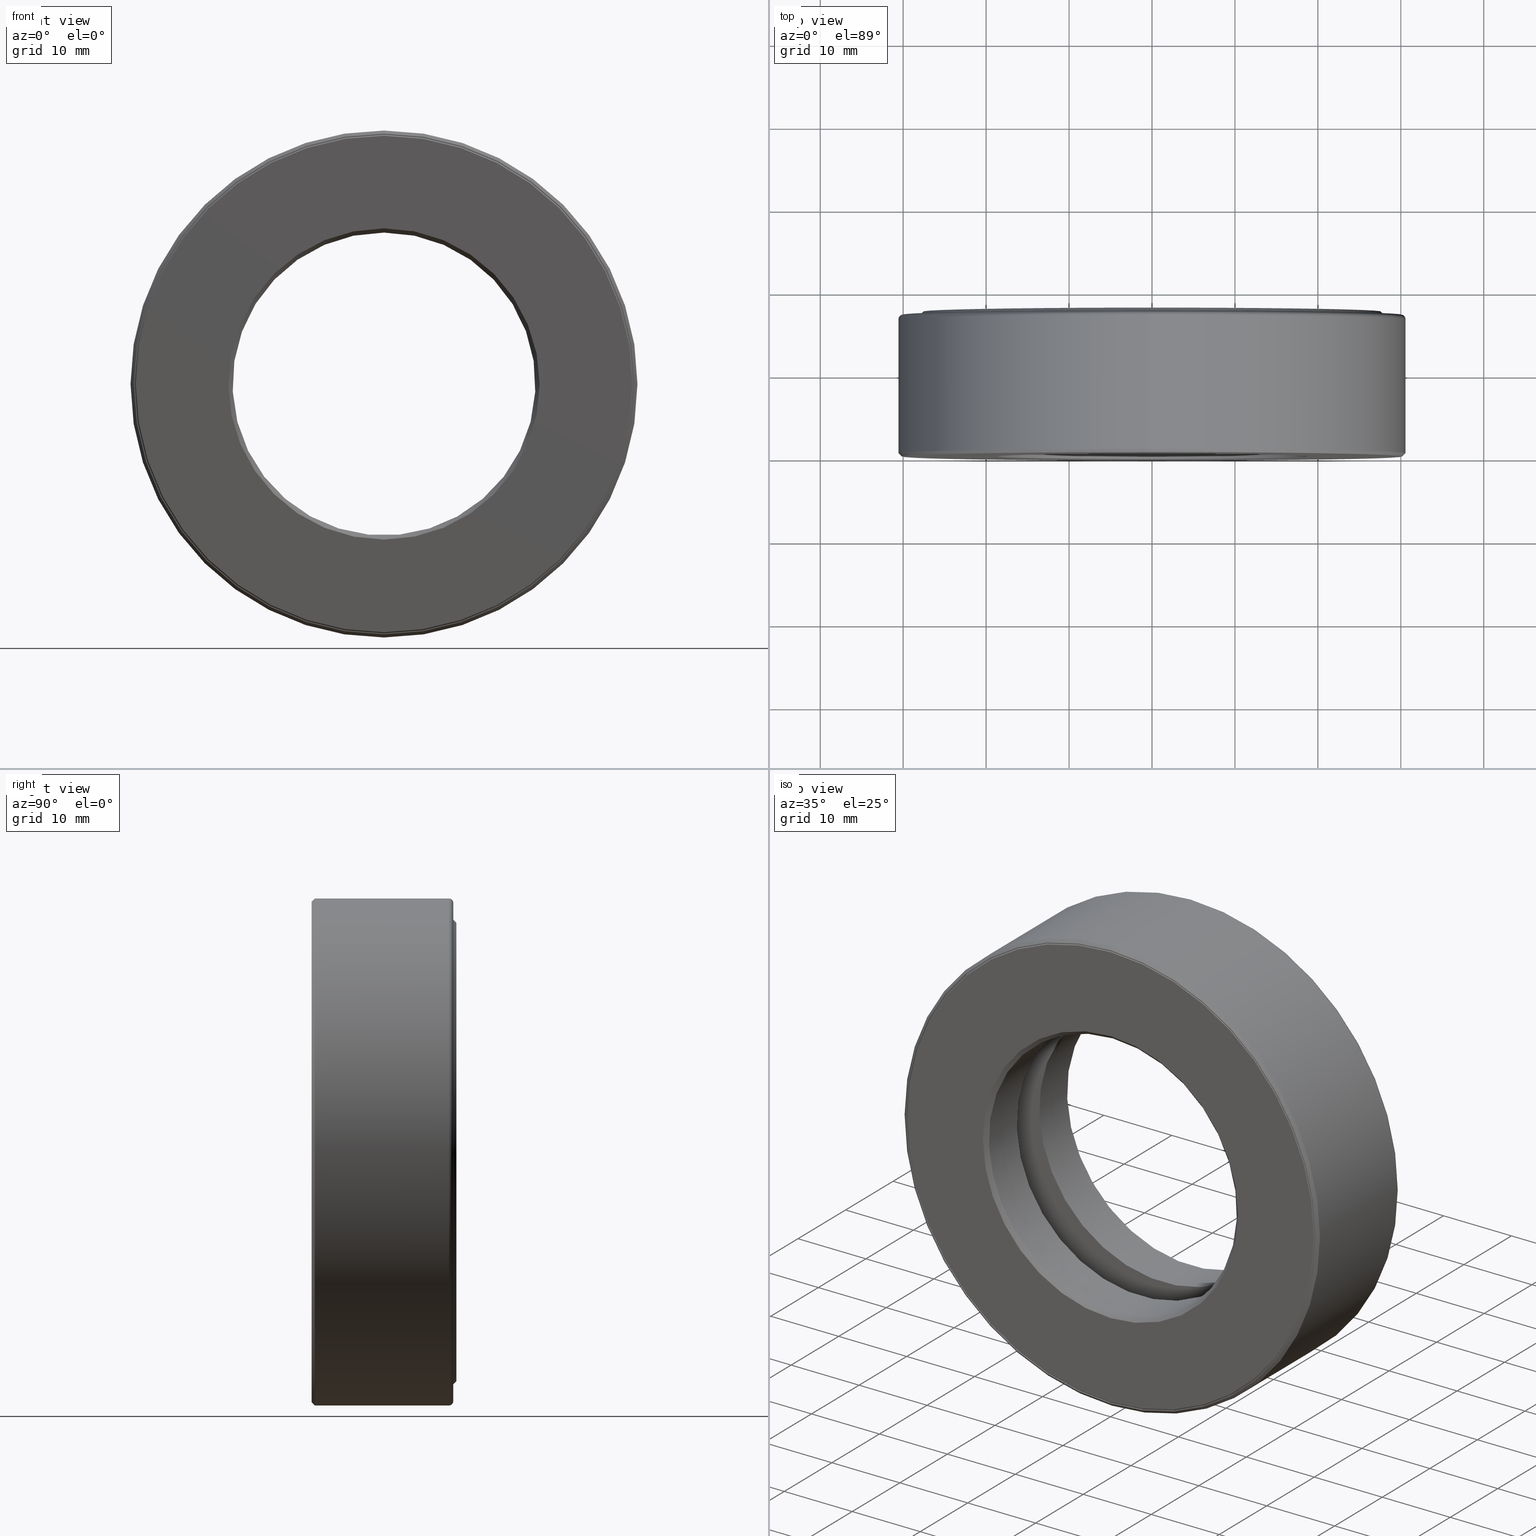
[diagram: canonical four-view strip — front | top / right | iso, engineering-drawing reading convention]
A machine part, canonical four-view strip (front | top / right | iso — engineering-drawing reading convention). The complete STEP part file that produces these views, byte-faithful:
ISO-10303-21;
HEADER;
FILE_DESCRIPTION (( 'STEP AP203' ),
    '1' );
FILE_NAME ('T-100-18.step',
    '2016-06-29T18:27:21',
    ( '' ),
    ( '' ),
    'SwSTEP 2.0',
    'SolidWorks 2016',
    '' );
FILE_SCHEMA (( 'CONFIG_CONTROL_DESIGN' ));
ENDSEC;

DATA;
#1 = ORIENTED_EDGE ( 'NONE', *, *, #105, .T. ) ;
#2 = PERSON_AND_ORGANIZATION ( #365, #262 ) ;
#3 = DIRECTION ( 'NONE',  ( 0.0000000000000000000, 0.0000000000000000000, 1.000000000000000000 ) ) ;
#4 = DIRECTION ( 'NONE',  ( -0.0000000000000000000, 1.000000000000000000, -0.0000000000000000000 ) ) ;
#5 = CARTESIAN_POINT ( 'NONE',  ( 0.0000000000000000000, 0.6524999999999997500, 1.123125000000000200 ) ) ;
#6 = FACE_OUTER_BOUND ( 'NONE', #57, .T. ) ;
#7 = EDGE_LOOP ( 'NONE', ( #508 ) ) ;
#8 = CC_DESIGN_DATE_AND_TIME_ASSIGNMENT ( #265, #14, ( #118 ) ) ;
#9 = DIRECTION ( 'NONE',  ( 0.0000000000000000000, 0.0000000000000000000, 1.000000000000000000 ) ) ;
#10 = EDGE_LOOP ( 'NONE', ( #274 ) ) ;
#11 = CARTESIAN_POINT ( 'NONE',  ( 0.0000000000000000000, 0.6524999999999997500, 0.0000000000000000000 ) ) ;
#12 = AXIS2_PLACEMENT_3D ( 'NONE', #305, #139, #370 ) ;
#13 = CARTESIAN_POINT ( 'NONE',  ( 0.0000000000000000000, 0.6724999999999998800, 0.0000000000000000000 ) ) ;
#14 = DATE_TIME_ROLE ( 'creation_date' ) ;
#15 = VERTEX_POINT ( 'NONE', #250 ) ;
#16 = EDGE_LOOP ( 'NONE', ( #303 ) ) ;
#17 = EDGE_CURVE ( 'NONE', #499, #499, #217, .T. ) ;
#18 = EDGE_LOOP ( 'NONE', ( #506 ) ) ;
#19 = CC_DESIGN_SECURITY_CLASSIFICATION ( #372, ( #297 ) ) ;
#20 = DIRECTION ( 'NONE',  ( 6.982962677686269100E-015, -0.0000000000000000000, 1.000000000000000000 ) ) ;
#21 = DIRECTION ( 'NONE',  ( 0.0000000000000000000, 0.0000000000000000000, 1.000000000000000000 ) ) ;
#22 = AXIS2_PLACEMENT_3D ( 'NONE', #58, #157, #108 ) ;
#23 =( LENGTH_UNIT ( ) NAMED_UNIT ( * ) SI_UNIT ( $, .METRE. ) );
#24 = CARTESIAN_POINT ( 'NONE',  ( 0.0000000000000000000, 0.2500000000000001100, 0.0000000000000000000 ) ) ;
#25 = ADVANCED_FACE ( 'NONE', ( #327, #201 ), #52, .F. ) ;
#26 = TOROIDAL_SURFACE ( 'NONE', #534, 1.017874999999999900, 0.1562499999999999200 ) ;
#27 = APPLICATION_PROTOCOL_DEFINITION ( 'international standard', 'config_control_design', 1994, #582 ) ;
#28 = SPHERICAL_SURFACE ( 'NONE', #87, 0.1562500000000000000 ) ;
#29 = AXIS2_PLACEMENT_3D ( 'NONE', #360, #539, #371 ) ;
#30 = APPROVAL_PERSON_ORGANIZATION ( #562, #130, #72 ) ;
#31 = CC_DESIGN_PERSON_AND_ORGANIZATION_ASSIGNMENT ( #225, #301, ( #297 ) ) ;
#32 = EDGE_LOOP ( 'NONE', ( #439 ) ) ;
#33 = MANIFOLD_SOLID_BREP ( 'Revolve2[2]', #578 ) ;
#34 = EDGE_LOOP ( 'NONE', ( #174 ) ) ;
#35 = COORDINATED_UNIVERSAL_TIME_OFFSET ( 5, 0, .BEHIND. ) ;
#36 = AXIS2_PLACEMENT_3D ( 'NONE', #382, #462, #47 ) ;
#37 = EDGE_CURVE ( 'NONE', #216, #216, #168, .T. ) ;
#38 = PLANE ( 'NONE',  #574 ) ;
#39 = FACE_BOUND ( 'NONE', #223, .T. ) ;
#40 = CARTESIAN_POINT ( 'NONE',  ( 0.0000000000000000000, 0.6524999999999997500, 0.0000000000000000000 ) ) ;
#41 = ORIENTED_EDGE ( 'NONE', *, *, #115, .T. ) ;
#42 = AXIS2_PLACEMENT_3D ( 'NONE', #485, #287, #403 ) ;
#43 = CARTESIAN_POINT ( 'NONE',  ( -2.398680184444861200E-031, -6.709876063954291900E-017, 0.0000000000000000000 ) ) ;
#44 = FACE_OUTER_BOUND ( 'NONE', #132, .T. ) ;
#45 = EDGE_LOOP ( 'NONE', ( #401 ) ) ;
#46 = EDGE_LOOP ( 'NONE', ( #101 ) ) ;
#47 = DIRECTION ( 'NONE',  ( 0.0000000000000000000, 0.0000000000000000000, 1.000000000000000000 ) ) ;
#48 = EDGE_LOOP ( 'NONE', ( #569 ) ) ;
#49 = LOCAL_TIME ( 14, 27, 21.00000000000000000, #259 ) ;
#50 = DIRECTION ( 'NONE',  ( 0.0000000000000000000, 0.0000000000000000000, 1.000000000000000000 ) ) ;
#51 = DIRECTION ( 'NONE',  ( 0.0000000000000000000, 0.0000000000000000000, 1.000000000000000000 ) ) ;
#52 = PLANE ( 'NONE',  #63 ) ;
#53 = AXIS2_PLACEMENT_3D ( 'NONE', #228, #95, #510 ) ;
#54 = CIRCLE ( 'NONE', #492, 1.203125000000000000 ) ;
#55 = APPROVAL_PERSON_ORGANIZATION ( #116, #523, #256 ) ;
#56 = CIRCLE ( 'NONE', #467, 1.183124999999999800 ) ;
#57 = EDGE_LOOP ( 'NONE', ( #472 ) ) ;
#58 = CARTESIAN_POINT ( 'NONE',  ( 0.0000000000000000000, 0.02000000000000005900, 0.0000000000000000000 ) ) ;
#59 = ORIENTED_EDGE ( 'NONE', *, *, #470, .T. ) ;
#60 = PLANE ( 'NONE',  #133 ) ;
#61 = CARTESIAN_POINT ( 'NONE',  ( 0.0000000000000000000, 0.4375000000000000000, 0.8928749999999999700 ) ) ;
#62 = DIRECTION ( 'NONE',  ( 0.0000000000000000000, -0.0000000000000000000, -1.000000000000000000 ) ) ;
#63 = AXIS2_PLACEMENT_3D ( 'NONE', #285, #388, #244 ) ;
#64 = DIRECTION ( 'NONE',  ( 0.0000000000000000000, 0.0000000000000000000, 1.000000000000000000 ) ) ;
#65 = CARTESIAN_POINT ( 'NONE',  ( 1.017874999999999900, 0.3437500000000000000, -7.107783135549907000E-015 ) ) ;
#66 = FACE_OUTER_BOUND ( 'NONE', #346, .T. ) ;
#67 = EDGE_CURVE ( 'NONE', #326, #326, #446, .T. ) ;
#68 = ORIENTED_EDGE ( 'NONE', *, *, #105, .F. ) ;
#69 = ORIENTED_EDGE ( 'NONE', *, *, #330, .T. ) ;
#70 = DIRECTION ( 'NONE',  ( -0.0000000000000000000, 1.000000000000000000, -0.0000000000000000000 ) ) ;
#71 = ADVANCED_BREP_SHAPE_REPRESENTATION ( 'T-100-18', ( #322, #33, #491, #312, #359, #288, #585 ), #476 ) ;
#72 = APPROVAL_ROLE ( '' ) ;
#73 = ADVANCED_FACE ( 'NONE', ( #245, #74 ), #204, .T. ) ;
#74 = FACE_OUTER_BOUND ( 'NONE', #530, .T. ) ;
#75 = EDGE_LOOP ( 'NONE', ( #489 ) ) ;
#76 = EDGE_CURVE ( 'NONE', #200, #200, #309, .T. ) ;
#77 = CARTESIAN_POINT ( 'NONE',  ( 0.0000000000000000000, 0.0000000000000000000, 0.0000000000000000000 ) ) ;
#78 = VERTEX_POINT ( 'NONE', #152 ) ;
#79 = FACE_OUTER_BOUND ( 'NONE', #45, .T. ) ;
#80 = EDGE_LOOP ( 'NONE', ( #119 ) ) ;
#81 = DIRECTION ( 'NONE',  ( -0.0000000000000000000, 1.000000000000000000, -0.0000000000000000000 ) ) ;
#82 = CALENDAR_DATE ( 2016, 29, 6 ) ;
#83 = ADVANCED_FACE ( 'NONE', ( #551, #536 ), #127, .F. ) ;
#84 = AXIS2_PLACEMENT_3D ( 'NONE', #548, #189, #425 ) ;
#85 = CARTESIAN_POINT ( 'NONE',  ( 0.0000000000000000000, 0.6524999999999997500, 0.0000000000000000000 ) ) ;
#86 = ADVANCED_FACE ( 'NONE', ( #432, #362 ), #92, .T. ) ;
#87 = AXIS2_PLACEMENT_3D ( 'NONE', #299, #440, #349 ) ;
#88 = DIRECTION ( 'NONE',  ( 0.0000000000000000000, -0.0000000000000000000, -1.000000000000000000 ) ) ;
#89 = PRODUCT_DEFINITION_SHAPE ( 'NONE', 'NONE',  #118 ) ;
#90 = VERTEX_POINT ( 'NONE', #284 ) ;
#91 = DIRECTION ( 'NONE',  ( 0.0000000000000000000, 0.0000000000000000000, 1.000000000000000000 ) ) ;
#92 = CYLINDRICAL_SURFACE ( 'NONE', #314, 1.203125000000000000 ) ;
#93 = ADVANCED_FACE ( 'NONE', ( #131, #407 ), #268, .T. ) ;
#94 = ORIENTED_EDGE ( 'NONE', *, *, #444, .F. ) ;
#95 = DIRECTION ( 'NONE',  ( -0.0000000000000000000, 1.000000000000000000, -0.0000000000000000000 ) ) ;
#96 = PRODUCT_RELATED_PRODUCT_CATEGORY ( 'detail', '', ( #503 ) ) ;
#97 = DIRECTION ( 'NONE',  ( 0.0000000000000000000, 0.0000000000000000000, 1.000000000000000000 ) ) ;
#98 = DIRECTION ( 'NONE',  ( -0.0000000000000000000, 1.000000000000000000, -0.0000000000000000000 ) ) ;
#99 = VERTEX_POINT ( 'NONE', #429 ) ;
#100 = FACE_BOUND ( 'NONE', #379, .T. ) ;
#101 = ORIENTED_EDGE ( 'NONE', *, *, #343, .T. ) ;
#102 = DIRECTION ( 'NONE',  ( -0.0000000000000000000, 1.000000000000000000, 0.0000000000000000000 ) ) ;
#103 = EDGE_LOOP ( 'NONE', ( #592 ) ) ;
#104 = SHAPE_DEFINITION_REPRESENTATION ( #89, #71 ) ;
#105 = EDGE_CURVE ( 'NONE', #90, #90, #173, .T. ) ;
#106 = CARTESIAN_POINT ( 'NONE',  ( 0.0000000000000000000, 0.3437500000000000000, 0.0000000000000000000 ) ) ;
#107 = DIRECTION ( 'NONE',  ( 0.0000000000000000000, 0.0000000000000000000, 1.000000000000000000 ) ) ;
#108 = DIRECTION ( 'NONE',  ( 0.0000000000000000000, 0.0000000000000000000, -1.000000000000000000 ) ) ;
#109 = ORIENTED_EDGE ( 'NONE', *, *, #215, .T. ) ;
#110 = EDGE_LOOP ( 'NONE', ( #187 ) ) ;
#111 = CARTESIAN_POINT ( 'NONE',  ( 0.0000000000000000000, -6.509481547403127300E-017, 1.178125000000000100 ) ) ;
#112 = AXIS2_PLACEMENT_3D ( 'NONE', #220, #498, #591 ) ;
#113 = CARTESIAN_POINT ( 'NONE',  ( 0.0000000000000000000, 0.4375000000000000000, 1.176124999999999900 ) ) ;
#114 = CARTESIAN_POINT ( 'NONE',  ( 0.0000000000000000000, -6.509481547403127300E-017, 0.0000000000000000000 ) ) ;
#115 = EDGE_CURVE ( 'NONE', #589, #589, #263, .T. ) ;
#116 = PERSON_AND_ORGANIZATION ( #365, #262 ) ;
#117 = CIRCLE ( 'NONE', #291, 0.7187500000000000000 ) ;
#118 = PRODUCT_DEFINITION ( 'UNKNOWN', '', #297, #376 ) ;
#119 = ORIENTED_EDGE ( 'NONE', *, *, #115, .F. ) ;
#120 = DIRECTION ( 'NONE',  ( -0.0000000000000000000, 1.000000000000000000, -0.0000000000000000000 ) ) ;
#121 = APPLICATION_CONTEXT ( 'configuration controlled 3d designs of mechanical parts and assemblies' ) ;
#122 = CARTESIAN_POINT ( 'NONE',  ( 0.0000000000000000000, 0.6724999999999998800, 0.0000000000000000000 ) ) ;
#123 = APPROVAL_STATUS ( 'not_yet_approved' ) ;
#124 = DIRECTION ( 'NONE',  ( 0.0000000000000000000, 0.0000000000000000000, 1.000000000000000000 ) ) ;
#125 = CIRCLE ( 'NONE', #29, 0.7187500000000000000 ) ;
#126 = AXIS2_PLACEMENT_3D ( 'NONE', #295, #120, #487 ) ;
#127 = CONICAL_SURFACE ( 'NONE', #261, 0.7187500000000000000, 0.7853981633974517200 ) ;
#128 = ORIENTED_EDGE ( 'NONE', *, *, #538, .F. ) ;
#129 = ADVANCED_FACE ( 'NONE', ( #151, #159 ), #573, .F. ) ;
#130 = APPROVAL ( #167, 'UNSPECIFIED' ) ;
#131 = FACE_OUTER_BOUND ( 'NONE', #103, .T. ) ;
#132 = EDGE_LOOP ( 'NONE', ( #1 ) ) ;
#133 = AXIS2_PLACEMENT_3D ( 'NONE', #122, #579, #62 ) ;
#134 = ADVANCED_FACE ( 'NONE', ( #389, #519 ), #606, .T. ) ;
#135 = DIRECTION ( 'NONE',  ( 0.0000000000000000000, 0.0000000000000000000, 1.000000000000000000 ) ) ;
#136 = CARTESIAN_POINT ( 'NONE',  ( 0.0000000000000000000, 0.6875000000000000000, 0.0000000000000000000 ) ) ;
#137 = CYLINDRICAL_SURFACE ( 'NONE', #188, 1.183125000000000000 ) ;
#138 = EDGE_LOOP ( 'NONE', ( #390 ) ) ;
#139 = DIRECTION ( 'NONE',  ( -0.0000000000000000000, 1.000000000000000000, -0.0000000000000000000 ) ) ;
#140 = DIRECTION ( 'NONE',  ( -0.0000000000000000000, 1.000000000000000000, -0.0000000000000000000 ) ) ;
#141 = AXIS2_PLACEMENT_3D ( 'NONE', #331, #324, #604 ) ;
#142 = PLANE ( 'NONE',  #398 ) ;
#143 = DIRECTION ( 'NONE',  ( -0.0000000000000000000, 1.000000000000000000, -0.0000000000000000000 ) ) ;
#144 = EDGE_LOOP ( 'NONE', ( #281 ) ) ;
#145 = EDGE_LOOP ( 'NONE', ( #433 ) ) ;
#146 = LOCAL_TIME ( 14, 27, 21.00000000000000000, #197 ) ;
#147 = CC_DESIGN_PERSON_AND_ORGANIZATION_ASSIGNMENT ( #356, #408, ( #372 ) ) ;
#148 = CARTESIAN_POINT ( 'NONE',  ( 0.0000000000000000000, 0.02000000000000005900, 0.0000000000000000000 ) ) ;
#149 = PLANE ( 'NONE',  #249 ) ;
#150 = FACE_OUTER_BOUND ( 'NONE', #302, .T. ) ;
#151 = FACE_BOUND ( 'NONE', #537, .T. ) ;
#152 = CARTESIAN_POINT ( 'NONE',  ( 0.0000000000000000000, 0.6875000000000000000, 0.7387500000000001300 ) ) ;
#153 = CALENDAR_DATE ( 2016, 29, 6 ) ;
#154 = AXIS2_PLACEMENT_3D ( 'NONE', #596, #313, #323 ) ;
#155 = DIRECTION ( 'NONE',  ( -0.0000000000000000000, 1.000000000000000000, 0.0000000000000000000 ) ) ;
#156 = ADVANCED_FACE ( 'NONE', ( ), #289, .T. ) ;
#157 = DIRECTION ( 'NONE',  ( 0.0000000000000000000, -1.000000000000000000, 0.0000000000000000000 ) ) ;
#158 = LENGTH_MEASURE_WITH_UNIT ( LENGTH_MEASURE( 0.02539999999999999900 ), #23 );
#159 = FACE_OUTER_BOUND ( 'NONE', #32, .T. ) ;
#160 = ORIENTED_EDGE ( 'NONE', *, *, #76, .T. ) ;
#161 = APPROVAL_PERSON_ORGANIZATION ( #276, #219, #357 ) ;
#162 = CARTESIAN_POINT ( 'NONE',  ( 0.0000000000000000000, 0.6875000000000000000, 0.0000000000000000000 ) ) ;
#163 = AXIS2_PLACEMENT_3D ( 'NONE', #532, #224, #547 ) ;
#164 = DIRECTION ( 'NONE',  ( 0.0000000000000000000, 0.0000000000000000000, 1.000000000000000000 ) ) ;
#165 = DIRECTION ( 'NONE',  ( 1.000000000000000000, 0.0000000000000000000, 0.0000000000000000000 ) ) ;
#166 = CYLINDRICAL_SURFACE ( 'NONE', #364, 0.7187500000000000000 ) ;
#167 = APPROVAL_STATUS ( 'not_yet_approved' ) ;
#168 = CIRCLE ( 'NONE', #233, 1.123125000000000200 ) ;
#169 = DIRECTION ( 'NONE',  ( 0.0000000000000000000, 0.0000000000000000000, 1.000000000000000000 ) ) ;
#170 = CC_DESIGN_DATE_AND_TIME_ASSIGNMENT ( #211, #484, ( #372 ) ) ;
#171 = CIRCLE ( 'NONE', #36, 0.7387500000000001300 ) ;
#172 = AXIS2_PLACEMENT_3D ( 'NONE', #231, #143, #3 ) ;
#173 = CIRCLE ( 'NONE', #595, 1.123125000000000200 ) ;
#174 = ORIENTED_EDGE ( 'NONE', *, *, #393, .T. ) ;
#175 = CALENDAR_DATE ( 2016, 29, 6 ) ;
#176 = CC_DESIGN_PERSON_AND_ORGANIZATION_ASSIGNMENT ( #2, #400, ( #297 ) ) ;
#177 = CARTESIAN_POINT ( 'NONE',  ( 0.0000000000000000000, 0.2499999999999998600, 0.0000000000000000000 ) ) ;
#178 = ADVANCED_FACE ( 'NONE', ( ), #28, .T. ) ;
#179 = CIRCLE ( 'NONE', #383, 1.183124999999999800 ) ;
#180 = CARTESIAN_POINT ( 'NONE',  ( 0.0000000000000000000, 0.01499999999999997700, 0.0000000000000000000 ) ) ;
#181 = EDGE_LOOP ( 'NONE', ( #310 ) ) ;
#182 = CC_DESIGN_APPROVAL ( #219, ( #372 ) ) ;
#183 = ORIENTED_EDGE ( 'NONE', *, *, #393, .F. ) ;
#184 = DIRECTION ( 'NONE',  ( -0.0000000000000000000, 1.000000000000000000, 0.0000000000000000000 ) ) ;
#185 = DIRECTION ( 'NONE',  ( -0.0000000000000000000, 1.000000000000000000, -0.0000000000000000000 ) ) ;
#186 = CIRCLE ( 'NONE', #191, 1.183125000000000000 ) ;
#187 = ORIENTED_EDGE ( 'NONE', *, *, #37, .T. ) ;
#188 = AXIS2_PLACEMENT_3D ( 'NONE', #273, #332, #50 ) ;
#189 = DIRECTION ( 'NONE',  ( -0.0000000000000000000, 1.000000000000000000, -0.0000000000000000000 ) ) ;
#190 = ADVANCED_FACE ( 'NONE', ( #412, #501 ), #367, .F. ) ;
#191 = AXIS2_PLACEMENT_3D ( 'NONE', #500, #227, #135 ) ;
#192 = VERTEX_POINT ( 'NONE', #577 ) ;
#193 = CARTESIAN_POINT ( 'NONE',  ( 0.0000000000000000000, 0.6724999999999998800, 1.183125000000000000 ) ) ;
#194 = FACE_OUTER_BOUND ( 'NONE', #290, .T. ) ;
#195 = DIRECTION ( 'NONE',  ( -0.0000000000000000000, 1.000000000000000000, -0.0000000000000000000 ) ) ;
#196 = EDGE_LOOP ( 'NONE', ( #494 ) ) ;
#197 = COORDINATED_UNIVERSAL_TIME_OFFSET ( 5, 0, .BEHIND. ) ;
#198 = CARTESIAN_POINT ( 'NONE',  ( 0.0000000000000000000, 0.6524999999999997500, 1.203125000000000000 ) ) ;
#199 = CARTESIAN_POINT ( 'NONE',  ( 0.0000000000000000000, 0.2500000000000001100, 0.7187500000000000000 ) ) ;
#200 = VERTEX_POINT ( 'NONE', #113 ) ;
#201 = FACE_OUTER_BOUND ( 'NONE', #138, .T. ) ;
#202 = CARTESIAN_POINT ( 'NONE',  ( 0.0000000000000000000, 0.0000000000000000000, 0.0000000000000000000 ) ) ;
#203 = ORIENTED_EDGE ( 'NONE', *, *, #580, .T. ) ;
#204 = PLANE ( 'NONE',  #605 ) ;
#205 = MECHANICAL_CONTEXT ( 'NONE', #121, 'mechanical' ) ;
#206 = DIRECTION ( 'NONE',  ( -0.0000000000000000000, 1.000000000000000000, -0.0000000000000000000 ) ) ;
#207 = VERTEX_POINT ( 'NONE', #240 ) ;
#208 = CYLINDRICAL_SURFACE ( 'NONE', #53, 1.123125000000000200 ) ;
#209 = EDGE_LOOP ( 'NONE', ( #109 ) ) ;
#210 = CARTESIAN_POINT ( 'NONE',  ( 0.0000000000000000000, -6.590132143747920800E-017, 1.183124999999999800 ) ) ;
#211 = DATE_AND_TIME ( #455, #413 ) ;
#212 = CARTESIAN_POINT ( 'NONE',  ( 0.0000000000000000000, 0.3437500000000000000, 0.0000000000000000000 ) ) ;
#213 = ADVANCED_FACE ( 'NONE', ( #479, #237 ), #587, .F. ) ;
#214 = CARTESIAN_POINT ( 'NONE',  ( 0.0000000000000000000, -6.829619984160658000E-017, 0.0000000000000000000 ) ) ;
#215 = EDGE_CURVE ( 'NONE', #463, #463, #117, .T. ) ;
#216 = VERTEX_POINT ( 'NONE', #5 ) ;
#217 = CIRCLE ( 'NONE', #526, 1.183125000000000000 ) ;
#218 = ORIENTED_EDGE ( 'NONE', *, *, #67, .F. ) ;
#219 = APPROVAL ( #123, 'UNSPECIFIED' ) ;
#220 = CARTESIAN_POINT ( 'NONE',  ( 0.0000000000000000000, 0.4375000000000000000, 0.0000000000000000000 ) ) ;
#221 = AXIS2_PLACEMENT_3D ( 'NONE', #148, #377, #97 ) ;
#222 = CIRCLE ( 'NONE', #221, 0.7187499999999997800 ) ;
#223 = EDGE_LOOP ( 'NONE', ( #328 ) ) ;
#224 = DIRECTION ( 'NONE',  ( -0.0000000000000000000, 1.000000000000000000, -0.0000000000000000000 ) ) ;
#225 = PERSON_AND_ORGANIZATION ( #365, #262 ) ;
#226 = ADVANCED_FACE ( 'NONE', ( #344, #399 ), #60, .F. ) ;
#227 = DIRECTION ( 'NONE',  ( -0.0000000000000000000, 1.000000000000000000, -0.0000000000000000000 ) ) ;
#228 = CARTESIAN_POINT ( 'NONE',  ( 0.0000000000000000000, 0.0000000000000000000, 0.0000000000000000000 ) ) ;
#229 = CIRCLE ( 'NONE', #154, 0.8928749999999999700 ) ;
#230 = ORIENTED_EDGE ( 'NONE', *, *, #333, .F. ) ;
#231 = CARTESIAN_POINT ( 'NONE',  ( 0.0000000000000000000, -6.829619984160658000E-017, 0.0000000000000000000 ) ) ;
#232 = ADVANCED_FACE ( 'NONE', ( ), #416, .T. ) ;
#233 = AXIS2_PLACEMENT_3D ( 'NONE', #11, #477, #469 ) ;
#234 = CARTESIAN_POINT ( 'NONE',  ( 0.0000000000000000000, 0.4375000000000000000, 0.0000000000000000000 ) ) ;
#235 = DIRECTION ( 'NONE',  ( 0.0000000000000000000, 0.0000000000000000000, 1.000000000000000000 ) ) ;
#236 = VERTEX_POINT ( 'NONE', #563 ) ;
#237 = FACE_OUTER_BOUND ( 'NONE', #292, .T. ) ;
#238 = EDGE_CURVE ( 'NONE', #493, #493, #229, .T. ) ;
#239 = ORIENTED_EDGE ( 'NONE', *, *, #511, .F. ) ;
#240 = CARTESIAN_POINT ( 'NONE',  ( 0.0000000000000000000, 0.4374999999999998300, 0.7187500000000000000 ) ) ;
#241 = CARTESIAN_POINT ( 'NONE',  ( 0.0000000000000000000, 0.2499999999999998600, 1.183124999999999800 ) ) ;
#242 = UNCERTAINTY_MEASURE_WITH_UNIT (LENGTH_MEASURE( 1.000000000000000100E-005 ), #298, 'distance_accuracy_value', 'NONE');
#243 = FACE_OUTER_BOUND ( 'NONE', #599, .T. ) ;
#244 = DIRECTION ( 'NONE',  ( 0.0000000000000000000, -0.0000000000000000000, -1.000000000000000000 ) ) ;
#245 = FACE_BOUND ( 'NONE', #552, .T. ) ;
#246 = CARTESIAN_POINT ( 'NONE',  ( 0.0000000000000000000, 0.6674999999999998700, 0.0000000000000000000 ) ) ;
#247 = DIRECTION ( 'NONE',  ( -0.0000000000000000000, 1.000000000000000000, -0.0000000000000000000 ) ) ;
#248 = DIRECTION ( 'NONE',  ( -0.0000000000000000000, 1.000000000000000000, -0.0000000000000000000 ) ) ;
#249 = AXIS2_PLACEMENT_3D ( 'NONE', #396, #155, #339 ) ;
#250 = CARTESIAN_POINT ( 'NONE',  ( 0.0000000000000000000, -6.829619984160658000E-017, 1.188125000000000100 ) ) ;
#251 = EDGE_LOOP ( 'NONE', ( #368 ) ) ;
#252 = ORIENTED_EDGE ( 'NONE', *, *, #333, .T. ) ;
#253 = PLANE ( 'NONE',  #254 ) ;
#254 = AXIS2_PLACEMENT_3D ( 'NONE', #442, #321, #88 ) ;
#255 = DIRECTION ( 'NONE',  ( -1.000000000000000000, 0.0000000000000000000, 6.982962677686269100E-015 ) ) ;
#256 = APPROVAL_ROLE ( '' ) ;
#257 = DIRECTION ( 'NONE',  ( -0.0000000000000000000, 1.000000000000000000, -0.0000000000000000000 ) ) ;
#258 = FACE_OUTER_BOUND ( 'NONE', #46, .T. ) ;
#259 = COORDINATED_UNIVERSAL_TIME_OFFSET ( 5, 0, .BEHIND. ) ;
#260 = DATE_AND_TIME ( #337, #49 ) ;
#261 = AXIS2_PLACEMENT_3D ( 'NONE', #246, #395, #107 ) ;
#262 = ORGANIZATION ( 'UNSPECIFIED', 'UNSPECIFIED', '' ) ;
#263 = CIRCLE ( 'NONE', #430, 1.183125000000000000 ) ;
#264 = EDGE_LOOP ( 'NONE', ( #544 ) ) ;
#265 = DATE_AND_TIME ( #153, #502 ) ;
#266 = DIRECTION ( 'NONE',  ( -0.0000000000000000000, 1.000000000000000000, -0.0000000000000000000 ) ) ;
#267 = CYLINDRICAL_SURFACE ( 'NONE', #84, 1.183125000000000000 ) ;
#268 = CONICAL_SURFACE ( 'NONE', #564, 1.178125000000000100, 0.7853981633974453900 ) ;
#269 = DIRECTION ( 'NONE',  ( 0.0000000000000000000, 0.0000000000000000000, 1.000000000000000000 ) ) ;
#270 = AXIS2_PLACEMENT_3D ( 'NONE', #180, #81, #418 ) ;
#271 = DIRECTION ( 'NONE',  ( -0.0000000000000000000, 1.000000000000000000, -0.0000000000000000000 ) ) ;
#272 = VERTEX_POINT ( 'NONE', #111 ) ;
#273 = CARTESIAN_POINT ( 'NONE',  ( 0.0000000000000000000, 0.0000000000000000000, 0.0000000000000000000 ) ) ;
#274 = ORIENTED_EDGE ( 'NONE', *, *, #375, .F. ) ;
#275 = ORIENTED_EDGE ( 'NONE', *, *, #17, .T. ) ;
#276 = PERSON_AND_ORGANIZATION ( #365, #262 ) ;
#277 = DIRECTION ( 'NONE',  ( -0.0000000000000000000, 1.000000000000000000, -0.0000000000000000000 ) ) ;
#278 = AXIS2_PLACEMENT_3D ( 'NONE', #602, #277, #384 ) ;
#279 = DIRECTION ( 'NONE',  ( -0.0000000000000000000, 1.000000000000000000, -0.0000000000000000000 ) ) ;
#280 = FACE_OUTER_BOUND ( 'NONE', #10, .T. ) ;
#281 = ORIENTED_EDGE ( 'NONE', *, *, #375, .T. ) ;
#282 = DIRECTION ( 'NONE',  ( 0.0000000000000000000, -1.000000000000000000, 0.0000000000000000000 ) ) ;
#283 = CARTESIAN_POINT ( 'NONE',  ( 0.0000000000000000000, 0.4375000000000000000, 0.0000000000000000000 ) ) ;
#284 = CARTESIAN_POINT ( 'NONE',  ( 0.0000000000000000000, 0.6724999999999998800, 1.123125000000000200 ) ) ;
#285 = CARTESIAN_POINT ( 'NONE',  ( 0.0000000000000000000, 0.2499999999999998600, 0.0000000000000000000 ) ) ;
#286 = FACE_BOUND ( 'NONE', #16, .T. ) ;
#287 = DIRECTION ( 'NONE',  ( 0.0000000000000000000, -1.000000000000000000, 0.0000000000000000000 ) ) ;
#288 = MANIFOLD_SOLID_BREP ( 'BALLS[3]', #423 ) ;
#289 = SPHERICAL_SURFACE ( 'NONE', #460, 0.1562500000000000000 ) ;
#290 = EDGE_LOOP ( 'NONE', ( #160 ) ) ;
#291 = AXIS2_PLACEMENT_3D ( 'NONE', #24, #206, #169 ) ;
#292 = EDGE_LOOP ( 'NONE', ( #59 ) ) ;
#293 = DIRECTION ( 'NONE',  ( 1.000000000000000000, 0.0000000000000000000, 0.0000000000000000000 ) ) ;
#294 = LOCAL_TIME ( 14, 27, 21.00000000000000000, #35 ) ;
#295 = CARTESIAN_POINT ( 'NONE',  ( 0.0000000000000000000, 0.0000000000000000000, 0.0000000000000000000 ) ) ;
#296 = APPLICATION_PROTOCOL_DEFINITION ( 'international standard', 'config_control_design', 1994, #121 ) ;
#297 = PRODUCT_DEFINITION_FORMATION_WITH_SPECIFIED_SOURCE ( 'ANY', '', #503, .NOT_KNOWN. ) ;
#298 =( CONVERSION_BASED_UNIT ( 'INCH', #158 ) LENGTH_UNIT ( ) NAMED_UNIT ( #553 ) );
#299 = CARTESIAN_POINT ( 'NONE',  ( -1.066167470332486300E-014, 0.3437500000000000000, -1.017874999999999900 ) ) ;
#300 = CIRCLE ( 'NONE', #141, 1.178125000000000100 ) ;
#301 = PERSON_AND_ORGANIZATION_ROLE ( 'design_supplier' ) ;
#302 = EDGE_LOOP ( 'NONE', ( #275 ) ) ;
#303 = ORIENTED_EDGE ( 'NONE', *, *, #517, .T. ) ;
#304 =( NAMED_UNIT ( * ) SI_UNIT ( $, .STERADIAN. ) SOLID_ANGLE_UNIT ( ) );
#305 = CARTESIAN_POINT ( 'NONE',  ( 0.0000000000000000000, 0.5995000000000001400, 0.0000000000000000000 ) ) ;
#306 = AXIS2_PLACEMENT_3D ( 'NONE', #478, #483, #165 ) ;
#307 = ADVANCED_FACE ( 'NONE', ( #528, #421 ), #253, .T. ) ;
#308 = FACE_OUTER_BOUND ( 'NONE', #529, .T. ) ;
#309 = CIRCLE ( 'NONE', #410, 1.176124999999999900 ) ;
#310 = ORIENTED_EDGE ( 'NONE', *, *, #470, .F. ) ;
#311 = CC_DESIGN_PERSON_AND_ORGANIZATION_ASSIGNMENT ( #466, #436, ( #118 ) ) ;
#312 = MANIFOLD_SOLID_BREP ( 'BALLS[1]', #571 ) ;
#313 = DIRECTION ( 'NONE',  ( -0.0000000000000000000, 1.000000000000000000, -0.0000000000000000000 ) ) ;
#314 = AXIS2_PLACEMENT_3D ( 'NONE', #385, #279, #164 ) ;
#315 = VERTEX_POINT ( 'NONE', #241 ) ;
#316 = FACE_BOUND ( 'NONE', #75, .T. ) ;
#317 = EDGE_LOOP ( 'NONE', ( #252 ) ) ;
#318 = ADVANCED_FACE ( 'NONE', ( #66, #387 ), #38, .F. ) ;
#319 = ORIENTED_EDGE ( 'NONE', *, *, #444, .T. ) ;
#320 = DATE_AND_TIME ( #175, #294 ) ;
#321 = DIRECTION ( 'NONE',  ( 0.0000000000000000000, -1.000000000000000000, 0.0000000000000000000 ) ) ;
#322 = MANIFOLD_SOLID_BREP ( 'Revolve2[1]', #422 ) ;
#323 = DIRECTION ( 'NONE',  ( 0.0000000000000000000, 0.0000000000000000000, 1.000000000000000000 ) ) ;
#324 = DIRECTION ( 'NONE',  ( -0.0000000000000000000, 1.000000000000000000, -0.0000000000000000000 ) ) ;
#325 = ADVANCED_FACE ( 'NONE', ( #567, #431 ), #415, .T. ) ;
#326 = VERTEX_POINT ( 'NONE', #392 ) ;
#327 = FACE_BOUND ( 'NONE', #181, .T. ) ;
#328 = ORIENTED_EDGE ( 'NONE', *, *, #511, .T. ) ;
#329 = DIRECTION ( 'NONE',  ( 0.0000000000000000000, 0.0000000000000000000, 1.000000000000000000 ) ) ;
#330 = EDGE_CURVE ( 'NONE', #207, #207, #125, .T. ) ;
#331 = CARTESIAN_POINT ( 'NONE',  ( 0.0000000000000000000, -6.509481547403127300E-017, 0.0000000000000000000 ) ) ;
#332 = DIRECTION ( 'NONE',  ( -0.0000000000000000000, 1.000000000000000000, -0.0000000000000000000 ) ) ;
#333 = EDGE_CURVE ( 'NONE', #518, #518, #54, .T. ) ;
#334 = CIRCLE ( 'NONE', #424, 0.8928749999999999700 ) ;
#335 = EDGE_LOOP ( 'NONE', ( #230 ) ) ;
#336 = EDGE_LOOP ( 'NONE', ( #69 ) ) ;
#337 = CALENDAR_DATE ( 2016, 29, 6 ) ;
#338 = DIRECTION ( 'NONE',  ( 0.0000000000000000000, 0.0000000000000000000, 1.000000000000000000 ) ) ;
#339 = DIRECTION ( 'NONE',  ( 0.0000000000000000000, 0.0000000000000000000, 1.000000000000000000 ) ) ;
#340 = DIRECTION ( 'NONE',  ( 0.0000000000000000000, 0.0000000000000000000, 1.000000000000000000 ) ) ;
#341 = DIRECTION ( 'NONE',  ( -1.000000000000000000, 0.0000000000000000000, 3.491481338843134500E-015 ) ) ;
#342 = CIRCLE ( 'NONE', #270, 1.203125000000000000 ) ;
#343 = EDGE_CURVE ( 'NONE', #351, #351, #186, .T. ) ;
#344 = FACE_BOUND ( 'NONE', #453, .T. ) ;
#345 = CARTESIAN_POINT ( 'NONE',  ( 0.0000000000000000000, 0.004999999999999910800, 1.183125000000000000 ) ) ;
#346 = EDGE_LOOP ( 'NONE', ( #601 ) ) ;
#347 = DIRECTION ( 'NONE',  ( -0.0000000000000000000, 1.000000000000000000, -0.0000000000000000000 ) ) ;
#348 = CARTESIAN_POINT ( 'NONE',  ( 3.553891567774953500E-015, 0.3437500000000000000, 1.017874999999999900 ) ) ;
#349 = DIRECTION ( 'NONE',  ( 1.047444401652939400E-014, 0.0000000000000000000, 1.000000000000000000 ) ) ;
#350 = APPROVAL_STATUS ( 'not_yet_approved' ) ;
#351 = VERTEX_POINT ( 'NONE', #514 ) ;
#352 = FACE_OUTER_BOUND ( 'NONE', #251, .T. ) ;
#353 = EDGE_LOOP ( 'NONE', ( #128 ) ) ;
#354 = AXIS2_PLACEMENT_3D ( 'NONE', #214, #409, #124 ) ;
#355 = EDGE_LOOP ( 'NONE', ( #515 ) ) ;
#356 = PERSON_AND_ORGANIZATION ( #365, #262 ) ;
#357 = APPROVAL_ROLE ( '' ) ;
#358 = CARTESIAN_POINT ( 'NONE',  ( 0.0000000000000000000, 0.6724999999999998800, 0.0000000000000000000 ) ) ;
#359 = MANIFOLD_SOLID_BREP ( 'BALLS[2]', #454 ) ;
#360 = CARTESIAN_POINT ( 'NONE',  ( 0.0000000000000000000, 0.4374999999999998300, 0.0000000000000000000 ) ) ;
#361 = FACE_BOUND ( 'NONE', #355, .T. ) ;
#362 = FACE_OUTER_BOUND ( 'NONE', #34, .T. ) ;
#363 = ORIENTED_EDGE ( 'NONE', *, *, #215, .F. ) ;
#364 = AXIS2_PLACEMENT_3D ( 'NONE', #77, #419, #545 ) ;
#365 = PERSON ( 'UNSPECIFIED', 'UNSPECIFIED', 'UNSPECIFIED', ('UNSPECIFIED'), ('UNSPECIFIED'), ('UNSPECIFIED') ) ;
#366 = PERSON_AND_ORGANIZATION ( #365, #262 ) ;
#367 = CYLINDRICAL_SURFACE ( 'NONE', #126, 0.7187499999999997800 ) ;
#368 = ORIENTED_EDGE ( 'NONE', *, *, #533, .T. ) ;
#369 = ADVANCED_FACE ( 'NONE', ( #352, #316 ), #594, .T. ) ;
#370 = DIRECTION ( 'NONE',  ( 0.0000000000000000000, 0.0000000000000000000, 1.000000000000000000 ) ) ;
#371 = DIRECTION ( 'NONE',  ( 0.0000000000000000000, 0.0000000000000000000, 1.000000000000000000 ) ) ;
#372 = SECURITY_CLASSIFICATION ( '', '', #486 ) ;
#373 = CIRCLE ( 'NONE', #172, 1.188125000000000100 ) ;
#374 = EDGE_LOOP ( 'NONE', ( #428 ) ) ;
#375 = EDGE_CURVE ( 'NONE', #99, #99, #543, .T. ) ;
#376 = DESIGN_CONTEXT ( 'detailed design', #582, 'design' ) ;
#377 = DIRECTION ( 'NONE',  ( -0.0000000000000000000, 1.000000000000000000, -0.0000000000000000000 ) ) ;
#378 = VERTEX_POINT ( 'NONE', #61 ) ;
#379 = EDGE_LOOP ( 'NONE', ( #203 ) ) ;
#380 = ADVANCED_FACE ( 'NONE', ( #406, #549 ), #166, .F. ) ;
#381 = EDGE_LOOP ( 'NONE', ( #319 ) ) ;
#382 = CARTESIAN_POINT ( 'NONE',  ( 0.0000000000000000000, 0.6875000000000000000, 0.0000000000000000000 ) ) ;
#383 = AXIS2_PLACEMENT_3D ( 'NONE', #560, #247, #9 ) ;
#384 = DIRECTION ( 'NONE',  ( 0.0000000000000000000, 0.0000000000000000000, 1.000000000000000000 ) ) ;
#385 = CARTESIAN_POINT ( 'NONE',  ( 0.0000000000000000000, 0.0000000000000000000, 0.0000000000000000000 ) ) ;
#386 = DIRECTION ( 'NONE',  ( -3.491481338843134500E-015, 0.0000000000000000000, -1.000000000000000000 ) ) ;
#387 = FACE_BOUND ( 'NONE', #110, .T. ) ;
#388 = DIRECTION ( 'NONE',  ( 0.0000000000000000000, -1.000000000000000000, 0.0000000000000000000 ) ) ;
#389 = FACE_OUTER_BOUND ( 'NONE', #144, .T. ) ;
#390 = ORIENTED_EDGE ( 'NONE', *, *, #404, .T. ) ;
#391 = APPROVAL_DATE_TIME ( #320, #130 ) ;
#392 = CARTESIAN_POINT ( 'NONE',  ( 0.0000000000000000000, 0.0000000000000000000, 0.7387500000000000200 ) ) ;
#393 = EDGE_CURVE ( 'NONE', #437, #437, #342, .T. ) ;
#394 = CARTESIAN_POINT ( 'NONE',  ( 0.0000000000000000000, 0.01499999999999997700, 1.203125000000000000 ) ) ;
#395 = DIRECTION ( 'NONE',  ( -0.0000000000000000000, 1.000000000000000000, -0.0000000000000000000 ) ) ;
#396 = CARTESIAN_POINT ( 'NONE',  ( -1.621509918885022300E-032, -3.254740773701563600E-017, 0.0000000000000000000 ) ) ;
#397 = VERTEX_POINT ( 'NONE', #210 ) ;
#398 = AXIS2_PLACEMENT_3D ( 'NONE', #43, #102, #235 ) ;
#399 = FACE_OUTER_BOUND ( 'NONE', #465, .T. ) ;
#400 = PERSON_AND_ORGANIZATION_ROLE ( 'creator' ) ;
#401 = ORIENTED_EDGE ( 'NONE', *, *, #404, .F. ) ;
#402 = DIRECTION ( 'NONE',  ( 0.0000000000000000000, 0.0000000000000000000, 1.000000000000000000 ) ) ;
#403 = DIRECTION ( 'NONE',  ( 0.0000000000000000000, -0.0000000000000000000, -1.000000000000000000 ) ) ;
#404 = EDGE_CURVE ( 'NONE', #315, #315, #56, .T. ) ;
#405 = DIRECTION ( 'NONE',  ( 0.0000000000000000000, -1.000000000000000000, 0.0000000000000000000 ) ) ;
#406 = FACE_OUTER_BOUND ( 'NONE', #7, .T. ) ;
#407 = FACE_BOUND ( 'NONE', #381, .T. ) ;
#408 = PERSON_AND_ORGANIZATION_ROLE ( 'classification_officer' ) ;
#409 = DIRECTION ( 'NONE',  ( -0.0000000000000000000, 1.000000000000000000, -0.0000000000000000000 ) ) ;
#410 = AXIS2_PLACEMENT_3D ( 'NONE', #555, #195, #561 ) ;
#411 = VERTEX_POINT ( 'NONE', #481 ) ;
#412 = FACE_OUTER_BOUND ( 'NONE', #520, .T. ) ;
#413 = LOCAL_TIME ( 14, 27, 21.00000000000000000, #496 ) ;
#414 = AXIS2_PLACEMENT_3D ( 'NONE', #162, #405, #581 ) ;
#415 = TOROIDAL_SURFACE ( 'NONE', #163, 1.183125000000000000, 0.02000000000000005900 ) ;
#416 = SPHERICAL_SURFACE ( 'NONE', #306, 0.1562500000000000000 ) ;
#417 = EDGE_CURVE ( 'NONE', #236, #236, #438, .T. ) ;
#418 = DIRECTION ( 'NONE',  ( 0.0000000000000000000, 0.0000000000000000000, 1.000000000000000000 ) ) ;
#419 = DIRECTION ( 'NONE',  ( -0.0000000000000000000, 1.000000000000000000, -0.0000000000000000000 ) ) ;
#420 = ADVANCED_FACE ( 'NONE', ( #535, #286 ), #557, .T. ) ;
#421 = FACE_OUTER_BOUND ( 'NONE', #196, .T. ) ;
#422 = CLOSED_SHELL ( 'NONE', ( #213, #25, #546, #318, #542, #226, #325, #86, #420, #449, #570, #93, #600, #593, #190, #129 ) ) ;
#423 = CLOSED_SHELL ( 'NONE', ( #178 ) ) ;
#424 = AXIS2_PLACEMENT_3D ( 'NONE', #234, #271, #91 ) ;
#425 = DIRECTION ( 'NONE',  ( 0.0000000000000000000, 0.0000000000000000000, 1.000000000000000000 ) ) ;
#426 = CARTESIAN_POINT ( 'NONE',  ( 0.0000000000000000000, 0.6875000000000000000, 0.0000000000000000000 ) ) ;
#427 = CIRCLE ( 'NONE', #448, 0.7187500000000000000 ) ;
#428 = ORIENTED_EDGE ( 'NONE', *, *, #238, .F. ) ;
#429 = CARTESIAN_POINT ( 'NONE',  ( 0.0000000000000000000, 0.5995000000000001400, 1.176124999999999600 ) ) ;
#430 = AXIS2_PLACEMENT_3D ( 'NONE', #13, #248, #64 ) ;
#431 = FACE_OUTER_BOUND ( 'NONE', #317, .T. ) ;
#432 = FACE_OUTER_BOUND ( 'NONE', #335, .T. ) ;
#433 = ORIENTED_EDGE ( 'NONE', *, *, #580, .F. ) ;
#434 = DIRECTION ( 'NONE',  ( -0.0000000000000000000, 1.000000000000000000, -0.0000000000000000000 ) ) ;
#435 = CC_DESIGN_APPROVAL ( #130, ( #297 ) ) ;
#436 = PERSON_AND_ORGANIZATION_ROLE ( 'creator' ) ;
#437 = VERTEX_POINT ( 'NONE', #394 ) ;
#438 = CIRCLE ( 'NONE', #112, 1.142874999999999900 ) ;
#439 = ORIENTED_EDGE ( 'NONE', *, *, #238, .T. ) ;
#440 = DIRECTION ( 'NONE',  ( 1.000000000000000000, 0.0000000000000000000, -1.047444401652939400E-014 ) ) ;
#441 =( NAMED_UNIT ( * ) PLANE_ANGLE_UNIT ( ) SI_UNIT ( $, .RADIAN. ) );
#442 = CARTESIAN_POINT ( 'NONE',  ( 3.431969841286757500E-016, 0.4374999999999998900, 0.0000000000000000000 ) ) ;
#443 = ADVANCED_FACE ( 'NONE', ( #194, #280 ), #576, .T. ) ;
#444 = EDGE_CURVE ( 'NONE', #272, #272, #300, .T. ) ;
#445 = FACE_OUTER_BOUND ( 'NONE', #48, .T. ) ;
#446 = CIRCLE ( 'NONE', #497, 0.7387500000000000200 ) ;
#447 = ORIENTED_EDGE ( 'NONE', *, *, #417, .T. ) ;
#448 = AXIS2_PLACEMENT_3D ( 'NONE', #468, #185, #329 ) ;
#449 = ADVANCED_FACE ( 'NONE', ( #308, #100 ), #142, .F. ) ;
#450 = FACE_OUTER_BOUND ( 'NONE', #145, .T. ) ;
#451 = EDGE_CURVE ( 'NONE', #78, #78, #171, .T. ) ;
#452 = DIRECTION ( 'NONE',  ( 0.0000000000000000000, 0.0000000000000000000, 1.000000000000000000 ) ) ;
#453 = EDGE_LOOP ( 'NONE', ( #68 ) ) ;
#454 = CLOSED_SHELL ( 'NONE', ( #156 ) ) ;
#455 = CALENDAR_DATE ( 2016, 29, 6 ) ;
#456 = DIRECTION ( 'NONE',  ( 0.0000000000000000000, 0.0000000000000000000, 1.000000000000000000 ) ) ;
#457 = CONICAL_SURFACE ( 'NONE', #22, 0.7187499999999997800, 0.7853981633974517200 ) ;
#458 = ORIENTED_EDGE ( 'NONE', *, *, #475, .T. ) ;
#459 = ORIENTED_EDGE ( 'NONE', *, *, #517, .F. ) ;
#460 = AXIS2_PLACEMENT_3D ( 'NONE', #65, #20, #255 ) ;
#461 = CARTESIAN_POINT ( 'NONE',  ( 0.0000000000000000000, 0.2499999999999998600, 0.0000000000000000000 ) ) ;
#462 = DIRECTION ( 'NONE',  ( -0.0000000000000000000, 1.000000000000000000, -0.0000000000000000000 ) ) ;
#463 = VERTEX_POINT ( 'NONE', #199 ) ;
#464 = CIRCLE ( 'NONE', #507, 1.088124999999999800 ) ;
#465 = EDGE_LOOP ( 'NONE', ( #41 ) ) ;
#466 = PERSON_AND_ORGANIZATION ( #365, #262 ) ;
#467 = AXIS2_PLACEMENT_3D ( 'NONE', #177, #257, #584 ) ;
#468 = CARTESIAN_POINT ( 'NONE',  ( 0.0000000000000000000, 0.6674999999999998700, 0.0000000000000000000 ) ) ;
#469 = DIRECTION ( 'NONE',  ( 0.0000000000000000000, 0.0000000000000000000, 1.000000000000000000 ) ) ;
#470 = EDGE_CURVE ( 'NONE', #556, #556, #590, .T. ) ;
#471 = FACE_OUTER_BOUND ( 'NONE', #490, .T. ) ;
#472 = ORIENTED_EDGE ( 'NONE', *, *, #37, .F. ) ;
#473 = EDGE_LOOP ( 'NONE', ( #94 ) ) ;
#474 = DIRECTION ( 'NONE',  ( 0.0000000000000000000, 0.0000000000000000000, 1.000000000000000000 ) ) ;
#475 = EDGE_CURVE ( 'NONE', #378, #378, #334, .T. ) ;
#476 =( GEOMETRIC_REPRESENTATION_CONTEXT ( 3 ) GLOBAL_UNCERTAINTY_ASSIGNED_CONTEXT ( ( #242 ) ) GLOBAL_UNIT_ASSIGNED_CONTEXT ( ( #298, #441, #304 ) ) REPRESENTATION_CONTEXT ( 'NONE', 'WORKASPACE' ) );
#477 = DIRECTION ( 'NONE',  ( -0.0000000000000000000, 1.000000000000000000, -0.0000000000000000000 ) ) ;
#478 = CARTESIAN_POINT ( 'NONE',  ( -1.017874999999999900, 0.3437500000000000000, 0.0000000000000000000 ) ) ;
#479 = FACE_OUTER_BOUND ( 'NONE', #374, .T. ) ;
#480 = CLOSED_SHELL ( 'NONE', ( #232 ) ) ;
#481 = CARTESIAN_POINT ( 'NONE',  ( 0.0000000000000000000, 0.6674999999999998700, 0.7187500000000000000 ) ) ;
#482 = DATE_AND_TIME ( #82, #146 ) ;
#483 = DIRECTION ( 'NONE',  ( 0.0000000000000000000, 0.0000000000000000000, -1.000000000000000000 ) ) ;
#484 = DATE_TIME_ROLE ( 'classification_date' ) ;
#485 = CARTESIAN_POINT ( 'NONE',  ( -2.451407029490552700E-016, 0.2500000000000000000, 0.0000000000000000000 ) ) ;
#486 = SECURITY_CLASSIFICATION_LEVEL ( 'unclassified' ) ;
#487 = DIRECTION ( 'NONE',  ( 0.0000000000000000000, 0.0000000000000000000, 1.000000000000000000 ) ) ;
#488 = SPHERICAL_SURFACE ( 'NONE', #504, 0.1562500000000000000 ) ;
#489 = ORIENTED_EDGE ( 'NONE', *, *, #451, .F. ) ;
#490 = EDGE_LOOP ( 'NONE', ( #218 ) ) ;
#491 = MANIFOLD_SOLID_BREP ( 'Revolve3', #480 ) ;
#492 = AXIS2_PLACEMENT_3D ( 'NONE', #85, #266, #269 ) ;
#493 = VERTEX_POINT ( 'NONE', #566 ) ;
#494 = ORIENTED_EDGE ( 'NONE', *, *, #475, .F. ) ;
#495 = EDGE_LOOP ( 'NONE', ( #183 ) ) ;
#496 = COORDINATED_UNIVERSAL_TIME_OFFSET ( 5, 0, .BEHIND. ) ;
#497 = AXIS2_PLACEMENT_3D ( 'NONE', #513, #565, #474 ) ;
#498 = DIRECTION ( 'NONE',  ( -0.0000000000000000000, 1.000000000000000000, -0.0000000000000000000 ) ) ;
#499 = VERTEX_POINT ( 'NONE', #345 ) ;
#500 = CARTESIAN_POINT ( 'NONE',  ( 0.0000000000000000000, 0.6524999999999997500, 0.0000000000000000000 ) ) ;
#501 = FACE_OUTER_BOUND ( 'NONE', #209, .T. ) ;
#502 = LOCAL_TIME ( 14, 27, 21.00000000000000000, #509 ) ;
#503 = PRODUCT ( 'T-100-18', 'T-100-18', '', ( #205 ) ) ;
#504 = AXIS2_PLACEMENT_3D ( 'NONE', #348, #341, #386 ) ;
#505 = ORIENTED_EDGE ( 'NONE', *, *, #76, .F. ) ;
#506 = ORIENTED_EDGE ( 'NONE', *, *, #451, .T. ) ;
#507 = AXIS2_PLACEMENT_3D ( 'NONE', #426, #140, #51 ) ;
#508 = ORIENTED_EDGE ( 'NONE', *, *, #538, .T. ) ;
#509 = COORDINATED_UNIVERSAL_TIME_OFFSET ( 5, 0, .BEHIND. ) ;
#510 = DIRECTION ( 'NONE',  ( 0.0000000000000000000, 0.0000000000000000000, 1.000000000000000000 ) ) ;
#511 = EDGE_CURVE ( 'NONE', #192, #192, #222, .T. ) ;
#512 = CARTESIAN_POINT ( 'NONE',  ( 0.0000000000000000000, 0.2499999999999998600, 1.142874999999999900 ) ) ;
#513 = CARTESIAN_POINT ( 'NONE',  ( 0.0000000000000000000, 0.0000000000000000000, 0.0000000000000000000 ) ) ;
#514 = CARTESIAN_POINT ( 'NONE',  ( 0.0000000000000000000, 0.6524999999999997500, 1.183125000000000000 ) ) ;
#515 = ORIENTED_EDGE ( 'NONE', *, *, #67, .T. ) ;
#516 = DIRECTION ( 'NONE',  ( 0.0000000000000000000, -0.0000000000000000000, -1.000000000000000000 ) ) ;
#517 = EDGE_CURVE ( 'NONE', #15, #15, #373, .T. ) ;
#518 = VERTEX_POINT ( 'NONE', #198 ) ;
#519 = FACE_BOUND ( 'NONE', #558, .T. ) ;
#520 = EDGE_LOOP ( 'NONE', ( #239 ) ) ;
#521 = DIRECTION ( 'NONE',  ( 0.0000000000000000000, 0.0000000000000000000, 1.000000000000000000 ) ) ;
#522 = APPROVAL_DATE_TIME ( #260, #523 ) ;
#523 = APPROVAL ( #350, 'UNSPECIFIED' ) ;
#524 = PERSON_AND_ORGANIZATION_ROLE ( 'design_owner' ) ;
#525 = DIRECTION ( 'NONE',  ( -0.0000000000000000000, 1.000000000000000000, -0.0000000000000000000 ) ) ;
#526 = AXIS2_PLACEMENT_3D ( 'NONE', #568, #347, #340 ) ;
#527 = CARTESIAN_POINT ( 'NONE',  ( 0.0000000000000000000, 0.6875000000000000000, 1.088124999999999800 ) ) ;
#528 = FACE_BOUND ( 'NONE', #336, .T. ) ;
#529 = EDGE_LOOP ( 'NONE', ( #459 ) ) ;
#530 = EDGE_LOOP ( 'NONE', ( #505 ) ) ;
#531 = APPROVAL_DATE_TIME ( #482, #219 ) ;
#532 = CARTESIAN_POINT ( 'NONE',  ( 0.0000000000000000000, 0.6524999999999997500, 0.0000000000000000000 ) ) ;
#533 = EDGE_CURVE ( 'NONE', #541, #541, #464, .T. ) ;
#534 = AXIS2_PLACEMENT_3D ( 'NONE', #106, #4, #338 ) ;
#535 = FACE_OUTER_BOUND ( 'NONE', #495, .T. ) ;
#536 = FACE_BOUND ( 'NONE', #353, .T. ) ;
#537 = EDGE_LOOP ( 'NONE', ( #363 ) ) ;
#538 = EDGE_CURVE ( 'NONE', #411, #411, #427, .T. ) ;
#539 = DIRECTION ( 'NONE',  ( -0.0000000000000000000, 1.000000000000000000, -0.0000000000000000000 ) ) ;
#540 = DIRECTION ( 'NONE',  ( -0.0000000000000000000, 1.000000000000000000, 0.0000000000000000000 ) ) ;
#541 = VERTEX_POINT ( 'NONE', #527 ) ;
#542 = ADVANCED_FACE ( 'NONE', ( #6, #44 ), #208, .F. ) ;
#543 = CIRCLE ( 'NONE', #12, 1.176124999999999600 ) ;
#544 = ORIENTED_EDGE ( 'NONE', *, *, #330, .F. ) ;
#545 = DIRECTION ( 'NONE',  ( 0.0000000000000000000, 0.0000000000000000000, 1.000000000000000000 ) ) ;
#546 = ADVANCED_FACE ( 'NONE', ( #79, #258 ), #267, .F. ) ;
#547 = DIRECTION ( 'NONE',  ( 0.0000000000000000000, 0.0000000000000000000, 1.000000000000000000 ) ) ;
#548 = CARTESIAN_POINT ( 'NONE',  ( 0.0000000000000000000, 0.0000000000000000000, 0.0000000000000000000 ) ) ;
#549 = FACE_OUTER_BOUND ( 'NONE', #264, .T. ) ;
#550 = AXIS2_PLACEMENT_3D ( 'NONE', #136, #540, #452 ) ;
#551 = FACE_OUTER_BOUND ( 'NONE', #18, .T. ) ;
#552 = EDGE_LOOP ( 'NONE', ( #447 ) ) ;
#553 = DIMENSIONAL_EXPONENTS ( 1.000000000000000000, 0.0000000000000000000, 0.0000000000000000000, 0.0000000000000000000, 0.0000000000000000000, 0.0000000000000000000, 0.0000000000000000000 ) ;
#554 = DIRECTION ( 'NONE',  ( 0.0000000000000000000, 0.0000000000000000000, 1.000000000000000000 ) ) ;
#555 = CARTESIAN_POINT ( 'NONE',  ( 0.0000000000000000000, 0.4375000000000000000, 0.0000000000000000000 ) ) ;
#556 = VERTEX_POINT ( 'NONE', #512 ) ;
#557 = CONICAL_SURFACE ( 'NONE', #354, 1.188125000000000100, 0.7853981633974460600 ) ;
#558 = EDGE_LOOP ( 'NONE', ( #588 ) ) ;
#559 = AXIS2_PLACEMENT_3D ( 'NONE', #461, #98, #554 ) ;
#560 = CARTESIAN_POINT ( 'NONE',  ( 0.0000000000000000000, -6.590132143747920800E-017, 0.0000000000000000000 ) ) ;
#561 = DIRECTION ( 'NONE',  ( 0.0000000000000000000, 0.0000000000000000000, 1.000000000000000000 ) ) ;
#562 = PERSON_AND_ORGANIZATION ( #365, #262 ) ;
#563 = CARTESIAN_POINT ( 'NONE',  ( 0.0000000000000000000, 0.4375000000000000000, 1.142874999999999900 ) ) ;
#564 = AXIS2_PLACEMENT_3D ( 'NONE', #114, #434, #575 ) ;
#565 = DIRECTION ( 'NONE',  ( -0.0000000000000000000, 1.000000000000000000, -0.0000000000000000000 ) ) ;
#566 = CARTESIAN_POINT ( 'NONE',  ( 0.0000000000000000000, 0.2499999999999999200, 0.8928749999999999700 ) ) ;
#567 = FACE_OUTER_BOUND ( 'NONE', #80, .T. ) ;
#568 = CARTESIAN_POINT ( 'NONE',  ( 0.0000000000000000000, 0.004999999999999910800, 0.0000000000000000000 ) ) ;
#569 = ORIENTED_EDGE ( 'NONE', *, *, #417, .F. ) ;
#570 = ADVANCED_FACE ( 'NONE', ( #450, #150 ), #137, .F. ) ;
#571 = CLOSED_SHELL ( 'NONE', ( #586 ) ) ;
#572 = CC_DESIGN_PERSON_AND_ORGANIZATION_ASSIGNMENT ( #366, #524, ( #503 ) ) ;
#573 = PLANE ( 'NONE',  #42 ) ;
#574 = AXIS2_PLACEMENT_3D ( 'NONE', #40, #184, #456 ) ;
#575 = DIRECTION ( 'NONE',  ( 0.0000000000000000000, 0.0000000000000000000, 1.000000000000000000 ) ) ;
#576 = CYLINDRICAL_SURFACE ( 'NONE', #278, 1.176124999999999600 ) ;
#577 = CARTESIAN_POINT ( 'NONE',  ( 0.0000000000000000000, 0.02000000000000005900, 0.7187499999999997800 ) ) ;
#578 = CLOSED_SHELL ( 'NONE', ( #73, #583, #307, #380, #83, #369, #134, #443 ) ) ;
#579 = DIRECTION ( 'NONE',  ( 0.0000000000000000000, -1.000000000000000000, 0.0000000000000000000 ) ) ;
#580 = EDGE_CURVE ( 'NONE', #397, #397, #179, .T. ) ;
#581 = DIRECTION ( 'NONE',  ( 0.0000000000000000000, 0.0000000000000000000, -1.000000000000000000 ) ) ;
#582 = APPLICATION_CONTEXT ( 'configuration controlled 3d designs of mechanical parts and assemblies' ) ;
#583 = ADVANCED_FACE ( 'NONE', ( #243, #445 ), #26, .F. ) ;
#584 = DIRECTION ( 'NONE',  ( 0.0000000000000000000, 0.0000000000000000000, 1.000000000000000000 ) ) ;
#585 = AXIS2_PLACEMENT_3D ( 'NONE', #202, #21, #293 ) ;
#586 = ADVANCED_FACE ( 'NONE', ( ), #488, .T. ) ;
#587 = TOROIDAL_SURFACE ( 'NONE', #597, 1.017874999999999900, 0.1562500000000000000 ) ;
#588 = ORIENTED_EDGE ( 'NONE', *, *, #533, .F. ) ;
#589 = VERTEX_POINT ( 'NONE', #193 ) ;
#590 = CIRCLE ( 'NONE', #559, 1.142874999999999900 ) ;
#591 = DIRECTION ( 'NONE',  ( 0.0000000000000000000, 0.0000000000000000000, 1.000000000000000000 ) ) ;
#592 = ORIENTED_EDGE ( 'NONE', *, *, #17, .F. ) ;
#593 = ADVANCED_FACE ( 'NONE', ( #471, #39 ), #457, .F. ) ;
#594 = PLANE ( 'NONE',  #550 ) ;
#595 = AXIS2_PLACEMENT_3D ( 'NONE', #358, #70, #521 ) ;
#596 = CARTESIAN_POINT ( 'NONE',  ( 0.0000000000000000000, 0.2499999999999999200, 0.0000000000000000000 ) ) ;
#597 = AXIS2_PLACEMENT_3D ( 'NONE', #212, #525, #402 ) ;
#598 = FACE_OUTER_BOUND ( 'NONE', #473, .T. ) ;
#599 = EDGE_LOOP ( 'NONE', ( #458 ) ) ;
#600 = ADVANCED_FACE ( 'NONE', ( #598, #361 ), #149, .F. ) ;
#601 = ORIENTED_EDGE ( 'NONE', *, *, #343, .F. ) ;
#602 = CARTESIAN_POINT ( 'NONE',  ( 0.0000000000000000000, 0.0000000000000000000, 0.0000000000000000000 ) ) ;
#603 = CC_DESIGN_APPROVAL ( #523, ( #118 ) ) ;
#604 = DIRECTION ( 'NONE',  ( 0.0000000000000000000, 0.0000000000000000000, 1.000000000000000000 ) ) ;
#605 = AXIS2_PLACEMENT_3D ( 'NONE', #283, #282, #516 ) ;
#606 = CONICAL_SURFACE ( 'NONE', #414, 1.088124999999999800, 0.7853981633974482800 ) ;
ENDSEC;
END-ISO-10303-21;
